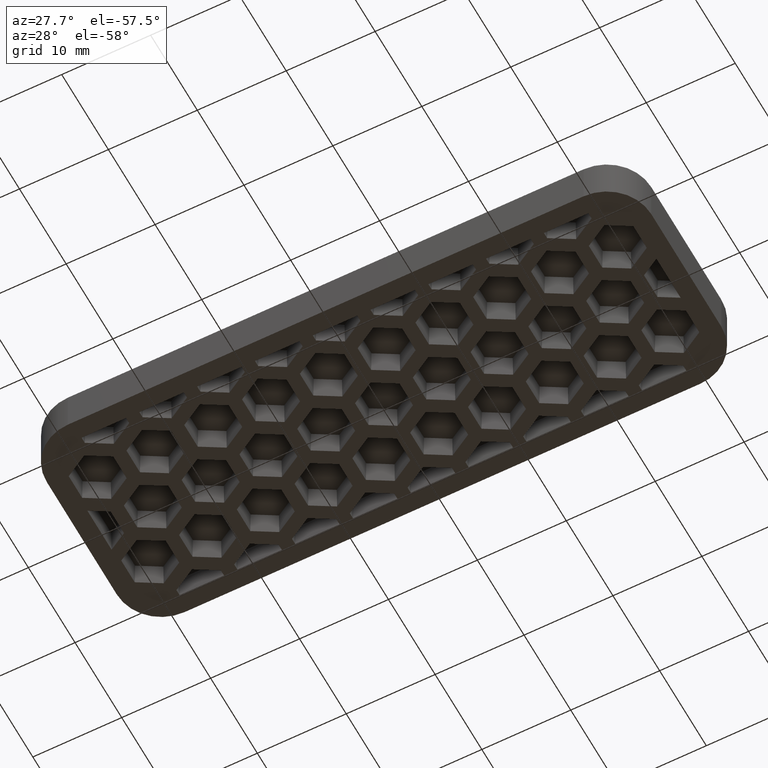
[diagram: clean part render]
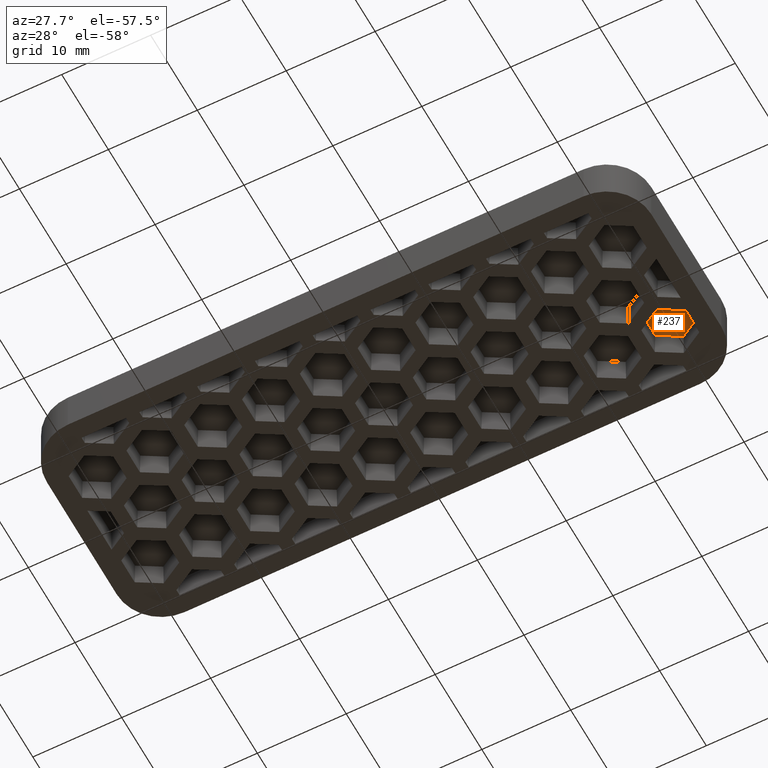
[diagram: same view with one face highlighted and labeled with its STEP entity id]
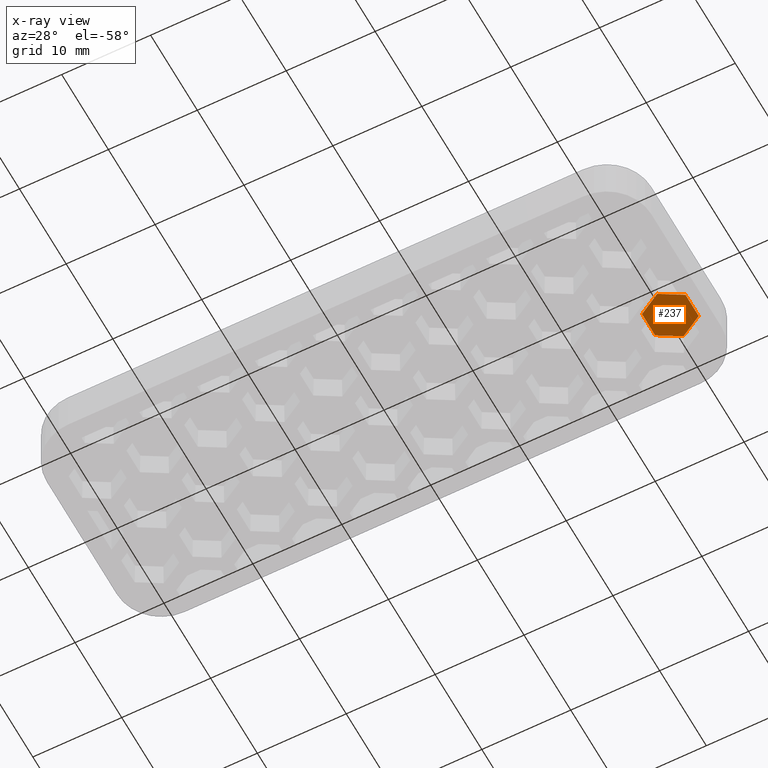
[diagram: x-ray of the same camera — body ghosted, the highlighted face saturated]
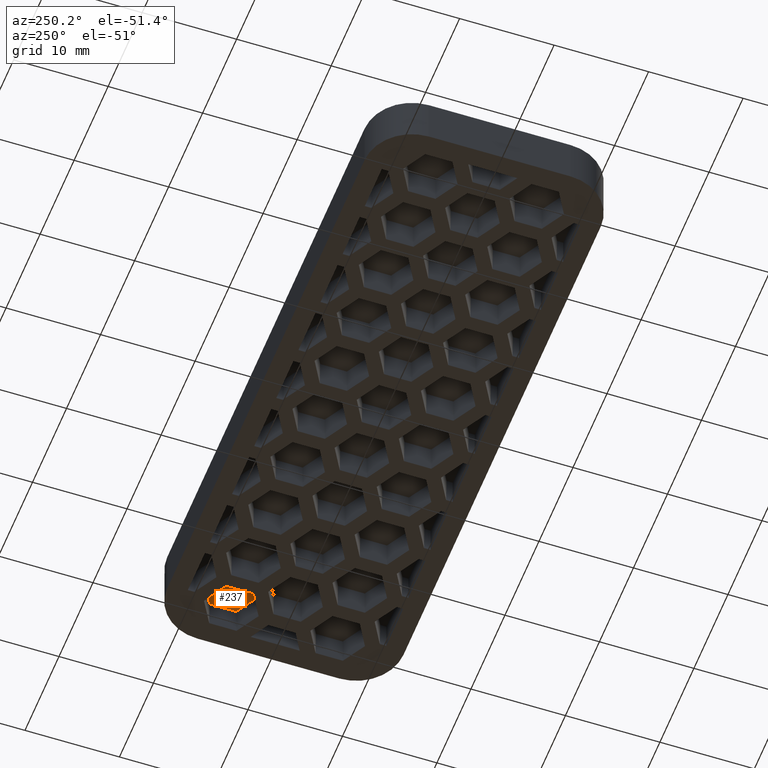
[diagram: same view with one face highlighted and labeled with its STEP entity id]
A machine part, auxiliary view. The second image highlights one B-rep face of the part: STEP entity #237.
The next image is the same camera in x-ray: the body ghosted, the highlighted face saturated — about 0% of this face is hidden behind the body in this view.
A second angle (auxiliary view) of the same face is appended — the face is thin or edge-on in the first view.
In plain terms, the highlighted planar face has unit normal (0, -0, -1).
Its self-contained STEP definition (entity closure, byte-faithful):
#237 = ADVANCED_FACE( '', ( #824 ), #825, .T. );
#824 = FACE_OUTER_BOUND( '', #1618, .T. );
#825 = PLANE( '', #1619 );
#1618 = EDGE_LOOP( '', ( #3552, #3553, #3554, #3555, #3556, #3557 ) );
#1619 = AXIS2_PLACEMENT_3D( '', #3558, #3559, #3560 );
#3552 = ORIENTED_EDGE( '', *, *, #5756, .T. );
#3553 = ORIENTED_EDGE( '', *, *, #5757, .T. );
#3554 = ORIENTED_EDGE( '', *, *, #5758, .T. );
#3555 = ORIENTED_EDGE( '', *, *, #5759, .T. );
#3556 = ORIENTED_EDGE( '', *, *, #5760, .T. );
#3557 = ORIENTED_EDGE( '', *, *, #5761, .T. );
#3558 = CARTESIAN_POINT( '', ( 31.7500000000000, 7.07254079757292, 3.00000000000000 ) );
#3559 = DIRECTION( '', ( 0.000000000000000, -6.12303176911189E-017, -1.00000000000000 ) );
#3560 = DIRECTION( '', ( 1.00000000000000, 4.99600361081321E-016, -3.05906888276070E-032 ) );
#5756 = EDGE_CURVE( '', #7278, #7279, #7280, .T. );
#5757 = EDGE_CURVE( '', #7279, #7281, #7282, .T. );
#5758 = EDGE_CURVE( '', #7281, #7283, #7284, .T. );
#5759 = EDGE_CURVE( '', #7283, #7285, #7286, .T. );
#5760 = EDGE_CURVE( '', #7285, #7287, #7288, .T. );
#5761 = EDGE_CURVE( '', #7287, #7278, #7289, .T. );
#7278 = VERTEX_POINT( '', #9576 );
#7279 = VERTEX_POINT( '', #9577 );
#7280 = LINE( '', #9578, #9579 );
#7281 = VERTEX_POINT( '', #9580 );
#7282 = LINE( '', #9581, #9582 );
#7283 = VERTEX_POINT( '', #9583 );
#7284 = LINE( '', #9584, #9585 );
#7285 = VERTEX_POINT( '', #9586 );
#7286 = LINE( '', #9587, #9588 );
#7287 = VERTEX_POINT( '', #9589 );
#7288 = LINE( '', #9590, #9591 );
#7289 = LINE( '', #9592, #9593 );
#9576 = CARTESIAN_POINT( '', ( 29.2500000000000, 8.45545035193681, 3.00000000000000 ) );
#9577 = CARTESIAN_POINT( '', ( 31.6976348052154, 7.04230773826783, 3.00000000000000 ) );
#9578 = CARTESIAN_POINT( '', ( 31.7238174026077, 7.02719120861529, 3.00000000000000 ) );
#9579 = VECTOR( '', #10720, 1000.00000000000 );
#9580 = CARTESIAN_POINT( '', ( 31.6976348052154, 4.21602251092987, 3.00000000000000 ) );
#9581 = CARTESIAN_POINT( '', ( 31.6976348052154, 7.07254079757292, 3.00000000000000 ) );
#9582 = VECTOR( '', #10721, 1000.00000000000 );
#9583 = CARTESIAN_POINT( '', ( 29.2500000000000, 2.80287989726089, 3.00000000000000 ) );
#9584 = CARTESIAN_POINT( '', ( 32.9738174026077, 4.95282687706944, 3.00000000000000 ) );
#9585 = VECTOR( '', #10722, 1000.00000000000 );
#9586 = CARTESIAN_POINT( '', ( 26.8023651947847, 4.21602251092987, 3.00000000000000 ) );
#9587 = CARTESIAN_POINT( '', ( 29.2761825973923, 2.78776336760835, 3.00000000000000 ) );
#9588 = VECTOR( '', #10723, 1000.00000000000 );
#9589 = CARTESIAN_POINT( '', ( 26.8023651947847, 7.04230773826783, 3.00000000000000 ) );
#9590 = CARTESIAN_POINT( '', ( 26.8023651947847, 7.07254079757292, 3.00000000000000 ) );
#9591 = VECTOR( '', #10724, 1000.00000000000 );
#9592 = CARTESIAN_POINT( '', ( 30.5261825973923, 9.19225471807638, 3.00000000000000 ) );
#9593 = VECTOR( '', #10725, 1000.00000000000 );
#10720 = DIRECTION( '', ( 0.866025403784439, -0.500000000000000, 3.06151588455594E-017 ) );
#10721 = DIRECTION( '', ( -4.99600361081321E-016, -1.00000000000000, 6.12303176911189E-017 ) );
#10722 = DIRECTION( '', ( -0.866025403784439, -0.500000000000000, 3.06151588455594E-017 ) );
#10723 = DIRECTION( '', ( -0.866025403784439, 0.500000000000000, -3.06151588455594E-017 ) );
#10724 = DIRECTION( '', ( -2.77555756156289E-016, 1.00000000000000, -6.12303176911189E-017 ) );
#10725 = DIRECTION( '', ( 0.866025403784439, 0.500000000000000, -3.06151588455594E-017 ) );